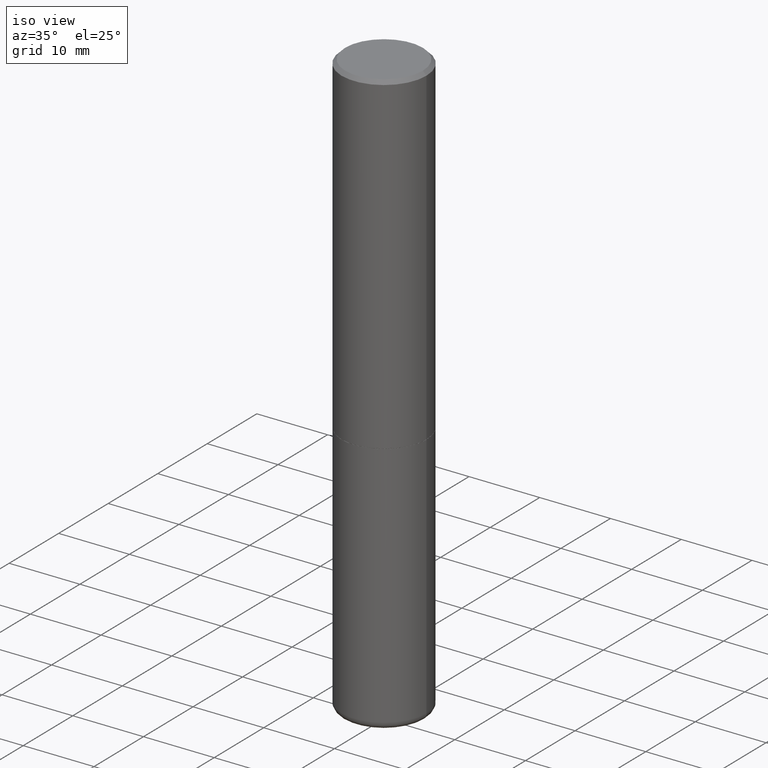
[diagram: clean part render]
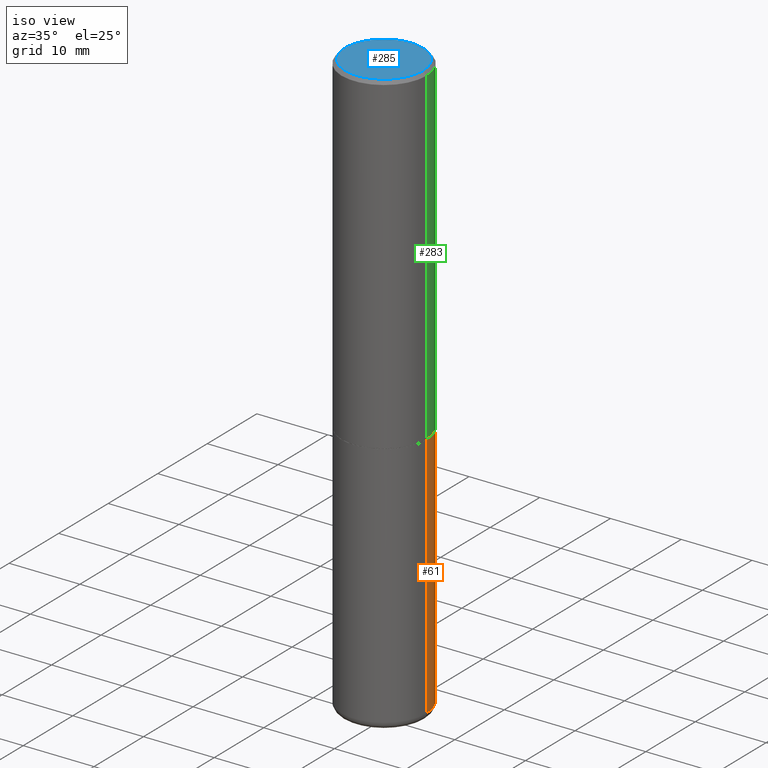
[diagram: same view with three faces highlighted in distinct colors, each labeled with its STEP entity id]
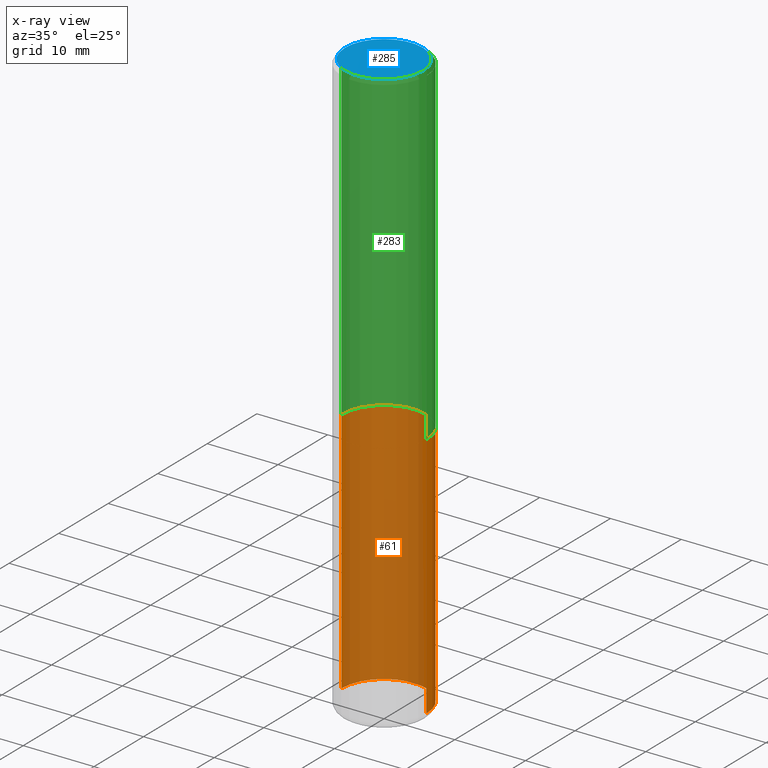
[diagram: x-ray of the same camera — body ghosted, the three highlighted faces saturated]
A machine part, iso view with three faces highlighted in distinct colors.
The next image is the same camera in x-ray (body ghosted, the three faces saturated) — at least one of them is partly hidden behind the body in this view.
Their STEP definitions:

[orange] entity #61 — the highlighted cylindrical surface (partial cylindrical patch) has radius 5.9995 mm, axis along (-0, 0, 1).
#11 = CARTESIAN_POINT ( 'NONE',  ( -0.2361999999999999933, -7.187791195925986796E-15, -1.850400000000000267 ) ) ;
#25 = ORIENTED_EDGE ( 'NONE', *, *, #314, .T. ) ;
#30 = EDGE_CURVE ( 'NONE', #201, #53, #339, .T. ) ;
#53 = VERTEX_POINT ( 'NONE', #228 ) ;
#60 = CARTESIAN_POINT ( 'NONE',  ( 4.525095478964977394E-29, -6.460637069395357576E-15, -1.850400000000000267 ) ) ;
#61 = ADVANCED_FACE ( 'NONE', ( #225 ), #257, .T. ) ;
#69 = CARTESIAN_POINT ( 'NONE',  ( 0.2361999999999999933, -1.292092499065682375E-14, -3.228299999999999947 ) ) ;
#81 = VECTOR ( 'NONE', #334, 39.37007874015748143 ) ;
#90 = AXIS2_PLACEMENT_3D ( 'NONE', #355, #226, #323 ) ;
#91 = DIRECTION ( 'NONE',  ( -2.445468806185136597E-29, 3.491481338843145583E-15, 1.000000000000000000 ) ) ;
#110 = AXIS2_PLACEMENT_3D ( 'NONE', #365, #91, #353 ) ;
#113 = CARTESIAN_POINT ( 'NONE',  ( -0.2361999999999999933, 1.678301941865356591E-15, -1.161852468318208757E-29 ) ) ;
#123 = ORIENTED_EDGE ( 'NONE', *, *, #267, .F. ) ;
#135 = VECTOR ( 'NONE', #178, 39.37007874015748143 ) ;
#136 = EDGE_CURVE ( 'NONE', #266, #312, #382, .T. ) ;
#178 = DIRECTION ( 'NONE',  ( -2.445468806185136877E-29, 3.491481338843145188E-15, 1.000000000000000000 ) ) ;
#201 = VERTEX_POINT ( 'NONE', #69 ) ;
#206 = LINE ( 'NONE', #113, #135 ) ;
#225 = FACE_OUTER_BOUND ( 'NONE', #411, .T. ) ;
#226 = DIRECTION ( 'NONE',  ( -2.445468806185136597E-29, 3.491481338843145583E-15, 1.000000000000000000 ) ) ;
#228 = CARTESIAN_POINT ( 'NONE',  ( -0.2361999999999999933, -9.593247264321970832E-15, -3.228299999999999947 ) ) ;
#236 = AXIS2_PLACEMENT_3D ( 'NONE', #60, #386, #289 ) ;
#257 = CYLINDRICAL_SURFACE ( 'NONE', #90, 0.2361999999999999933 ) ;
#266 = VERTEX_POINT ( 'NONE', #306 ) ;
#267 = EDGE_CURVE ( 'NONE', #201, #266, #367, .T. ) ;
#286 = ORIENTED_EDGE ( 'NONE', *, *, #136, .F. ) ;
#289 = DIRECTION ( 'NONE',  ( 1.000000000000000000, -6.982962677686269077E-15, 0.000000000000000000 ) ) ;
#306 = CARTESIAN_POINT ( 'NONE',  ( 0.2361999999999999933, -8.110012853864854101E-15, -1.850400000000000267 ) ) ;
#312 = VERTEX_POINT ( 'NONE', #11 ) ;
#314 = EDGE_CURVE ( 'NONE', #53, #312, #206, .T. ) ;
#323 = DIRECTION ( 'NONE',  ( 1.000000000000000000, -6.982962677686266711E-15, 4.876176775795936353E-29 ) ) ;
#334 = DIRECTION ( 'NONE',  ( -2.445468806185136877E-29, 3.491481338843145188E-15, 1.000000000000000000 ) ) ;
#339 = CIRCLE ( 'NONE', #110, 0.2361999999999999655 ) ;
#345 = CARTESIAN_POINT ( 'NONE',  ( 0.2361999999999999933, -1.649375784469496131E-15, 1.151752954443000088E-29 ) ) ;
#353 = DIRECTION ( 'NONE',  ( 1.000000000000000000, -6.982962677686265922E-15, 0.000000000000000000 ) ) ;
#355 = CARTESIAN_POINT ( 'NONE',  ( 0.000000000000000000, 0.000000000000000000, 0.000000000000000000 ) ) ;
#361 = ORIENTED_EDGE ( 'NONE', *, *, #30, .T. ) ;
#365 = CARTESIAN_POINT ( 'NONE',  ( 7.894706947007477118E-29, -1.127154920618732880E-14, -3.228299999999999947 ) ) ;
#367 = LINE ( 'NONE', #345, #81 ) ;
#382 = CIRCLE ( 'NONE', #236, 0.2361999999999999933 ) ;
#386 = DIRECTION ( 'NONE',  ( -2.445468806185136597E-29, 3.491481338843145583E-15, 1.000000000000000000 ) ) ;
#411 = EDGE_LOOP ( 'NONE', ( #361, #25, #286, #123 ) ) ;

[blue] entity #285 — the highlighted planar face has unit normal (0, -0, -1).
#2 = CARTESIAN_POINT ( 'NONE',  ( -3.653479950173268921E-45, 5.216201096331565337E-31, 1.493979371535143917E-16 ) ) ;
#29 = DIRECTION ( 'NONE',  ( 1.000000000000000000, -6.982962677686267499E-15, 4.881916136609867620E-29 ) ) ;
#35 = EDGE_CURVE ( 'NONE', #153, #319, #116, .T. ) ;
#39 = CIRCLE ( 'NONE', #71, 0.2161999999999997535 ) ;
#46 = DIRECTION ( 'NONE',  ( 2.438088387897960049E-29, -3.491481338843145188E-15, -1.000000000000000000 ) ) ;
#50 = PLANE ( 'NONE',  #322 ) ;
#55 = ORIENTED_EDGE ( 'NONE', *, *, #35, .T. ) ;
#57 = CARTESIAN_POINT ( 'NONE',  ( -3.653479950173268921E-45, 5.216201096331565337E-31, 1.493979371535143917E-16 ) ) ;
#71 = AXIS2_PLACEMENT_3D ( 'NONE', #2, #130, #29 ) ;
#80 = AXIS2_PLACEMENT_3D ( 'NONE', #57, #398, #260 ) ;
#89 = ORIENTED_EDGE ( 'NONE', *, *, #191, .T. ) ;
#116 = CIRCLE ( 'NONE', #80, 0.2161999999999997535 ) ;
#118 = EDGE_LOOP ( 'NONE', ( #89, #55 ) ) ;
#130 = DIRECTION ( 'NONE',  ( -2.445468806185136597E-29, 3.491481338843145583E-15, 1.000000000000000000 ) ) ;
#153 = VERTEX_POINT ( 'NONE', #328 ) ;
#191 = EDGE_CURVE ( 'NONE', #319, #153, #39, .T. ) ;
#240 = DIRECTION ( 'NONE',  ( -1.000000000000000000, 6.982962677686265922E-15, -4.876176775795935793E-29 ) ) ;
#260 = DIRECTION ( 'NONE',  ( 1.000000000000000000, -6.982962677686267499E-15, 4.881916136609867620E-29 ) ) ;
#276 = CARTESIAN_POINT ( 'NONE',  ( -0.2161999999999997535, 1.544631344304201183E-15, 1.493979371535037174E-16 ) ) ;
#285 = ADVANCED_FACE ( 'NONE', ( #311 ), #50, .F. ) ;
#305 = CARTESIAN_POINT ( 'NONE',  ( 1.509716530915769140E-15, 0.2161999999999997535, -6.801592968811301598E-16 ) ) ;
#311 = FACE_OUTER_BOUND ( 'NONE', #118, .T. ) ;
#319 = VERTEX_POINT ( 'NONE', #276 ) ;
#322 = AXIS2_PLACEMENT_3D ( 'NONE', #305, #46, #240 ) ;
#328 = CARTESIAN_POINT ( 'NONE',  ( 0.2161999999999997535, -1.586759460484350805E-15, 1.493979371535252139E-16 ) ) ;
#398 = DIRECTION ( 'NONE',  ( -2.445468806185136597E-29, 3.491481338843145583E-15, 1.000000000000000000 ) ) ;

[green] entity #283 — the highlighted cylindrical surface (partial cylindrical patch) has radius 5.9995 mm, axis along (-0, 0, 1).
#6 = LINE ( 'NONE', #245, #157 ) ;
#8 = ORIENTED_EDGE ( 'NONE', *, *, #330, .T. ) ;
#13 = CARTESIAN_POINT ( 'NONE',  ( 0.000000000000000000, 0.000000000000000000, 0.000000000000000000 ) ) ;
#17 = DIRECTION ( 'NONE',  ( -2.445468806185136597E-29, 3.491481338843145583E-15, 1.000000000000000000 ) ) ;
#28 = AXIS2_PLACEMENT_3D ( 'NONE', #13, #17, #170 ) ;
#38 = VERTEX_POINT ( 'NONE', #416 ) ;
#64 = EDGE_LOOP ( 'NONE', ( #175, #8, #316, #264 ) ) ;
#67 = CARTESIAN_POINT ( 'NONE',  ( -0.2361999999999999378, 1.579546157692632635E-15, -0.02000000000000005246 ) ) ;
#112 = CARTESIAN_POINT ( 'NONE',  ( 4.890937612370285420E-31, -6.982962677686308865E-17, -0.02000000000000005246 ) ) ;
#138 = CIRCLE ( 'NONE', #369, 0.2361999999999999378 ) ;
#140 = CARTESIAN_POINT ( 'NONE',  ( 4.522650010158792351E-29, -6.457145588056513780E-15, -1.849400000000000155 ) ) ;
#145 = CARTESIAN_POINT ( 'NONE',  ( -0.2362000000000000766, 1.678301941865357183E-15, -1.161852468318209177E-29 ) ) ;
#148 = DIRECTION ( 'NONE',  ( -2.445468806185136877E-29, 3.491481338843145188E-15, 1.000000000000000000 ) ) ;
#157 = VECTOR ( 'NONE', #399, 39.37007874015748143 ) ;
#168 = DIRECTION ( 'NONE',  ( -2.445468806185136597E-29, 3.491481338843145583E-15, 1.000000000000000000 ) ) ;
#170 = DIRECTION ( 'NONE',  ( 1.000000000000000000, -6.982962677686266711E-15, 4.876176775795935793E-29 ) ) ;
#175 = ORIENTED_EDGE ( 'NONE', *, *, #325, .T. ) ;
#183 = VERTEX_POINT ( 'NONE', #67 ) ;
#199 = VERTEX_POINT ( 'NONE', #265 ) ;
#245 = CARTESIAN_POINT ( 'NONE',  ( 0.2362000000000000766, -1.649375784469496722E-15, 1.151752954443000368E-29 ) ) ;
#247 = VECTOR ( 'NONE', #148, 39.37007874015748143 ) ;
#254 = EDGE_CURVE ( 'NONE', #199, #299, #6, .T. ) ;
#264 = ORIENTED_EDGE ( 'NONE', *, *, #254, .F. ) ;
#265 = CARTESIAN_POINT ( 'NONE',  ( 0.2362000000000002153, -8.106521372526011094E-15, -1.849400000000000155 ) ) ;
#270 = CIRCLE ( 'NONE', #374, 0.2362000000000002153 ) ;
#272 = DIRECTION ( 'NONE',  ( -2.445468806185136597E-29, 3.491481338843145583E-15, 1.000000000000000000 ) ) ;
#274 = DIRECTION ( 'NONE',  ( 1.000000000000000000, -6.982962677686266711E-15, 0.000000000000000000 ) ) ;
#281 = CYLINDRICAL_SURFACE ( 'NONE', #28, 0.2362000000000000766 ) ;
#283 = ADVANCED_FACE ( 'NONE', ( #332 ), #281, .T. ) ;
#299 = VERTEX_POINT ( 'NONE', #408 ) ;
#309 = DIRECTION ( 'NONE',  ( 1.000000000000000000, -6.982962677686266711E-15, 0.000000000000000000 ) ) ;
#316 = ORIENTED_EDGE ( 'NONE', *, *, #405, .F. ) ;
#325 = EDGE_CURVE ( 'NONE', #199, #38, #270, .T. ) ;
#330 = EDGE_CURVE ( 'NONE', #38, #183, #404, .T. ) ;
#332 = FACE_OUTER_BOUND ( 'NONE', #64, .T. ) ;
#369 = AXIS2_PLACEMENT_3D ( 'NONE', #112, #168, #309 ) ;
#374 = AXIS2_PLACEMENT_3D ( 'NONE', #140, #272, #274 ) ;
#399 = DIRECTION ( 'NONE',  ( -2.445468806185136877E-29, 3.491481338843145188E-15, 1.000000000000000000 ) ) ;
#404 = LINE ( 'NONE', #145, #247 ) ;
#405 = EDGE_CURVE ( 'NONE', #299, #183, #138, .T. ) ;
#408 = CARTESIAN_POINT ( 'NONE',  ( 0.2361999999999999378, -1.690279253850498377E-15, -0.02000000000000005246 ) ) ;
#416 = CARTESIAN_POINT ( 'NONE',  ( -0.2362000000000002431, -1.585185665551328595E-15, -1.849400000000000155 ) ) ;